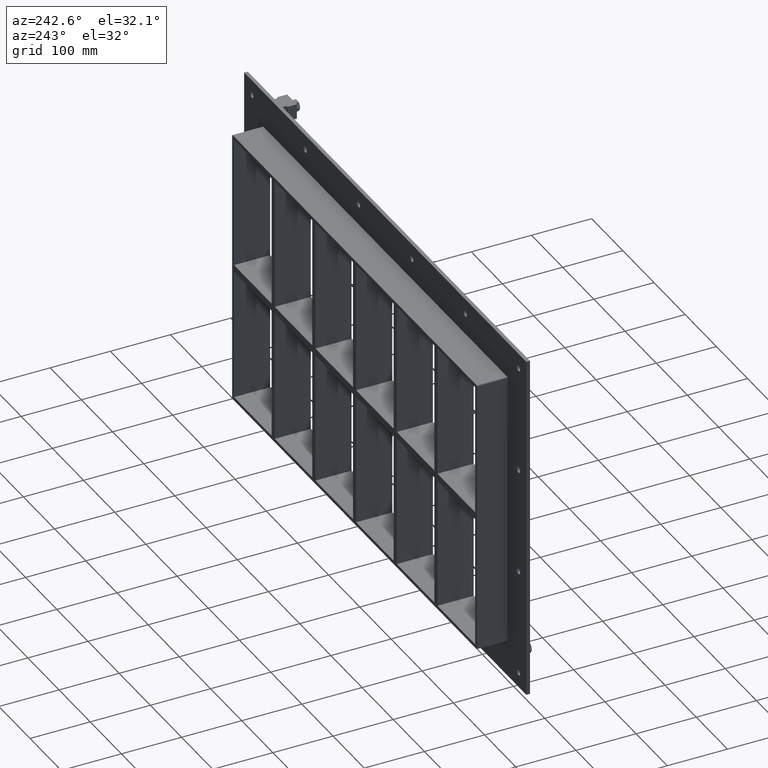
[diagram: clean part render]
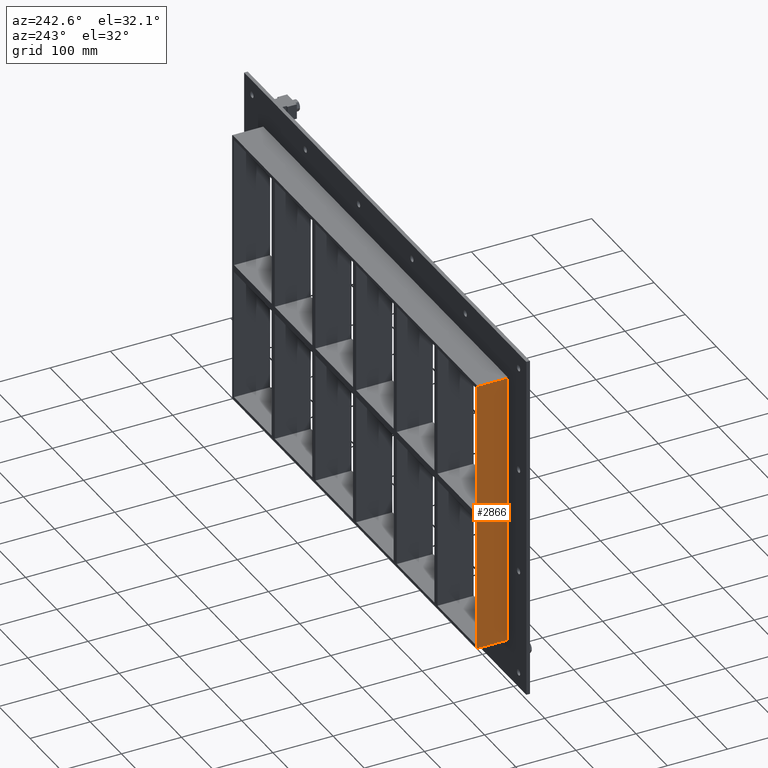
[diagram: same view with one face highlighted and labeled with its STEP entity id]
A machine part, auxiliary view. The second image highlights one B-rep face of the part: STEP entity #2866.
In plain terms, the highlighted planar face has unit normal (-1, 0, 0).
Its self-contained STEP definition (entity closure, byte-faithful):
#1682=CARTESIAN_POINT('',(-392.5,57.0,-228.00000000000006));
#1683=VERTEX_POINT('',#1682);
#1692=CARTESIAN_POINT('',(-392.5,57.0,228.00000000000009));
#1693=VERTEX_POINT('',#1692);
#1694=CARTESIAN_POINT('',(-392.5,57.0,-228.00000000000003));
#1695=DIRECTION('',(0.0,0.0,1.0));
#1696=VECTOR('',#1695,456.00000000000011);
#1697=LINE('',#1694,#1696);
#1698=EDGE_CURVE('',#1683,#1693,#1697,.T.);
#2357=CARTESIAN_POINT('',(-392.5,6.000000000000001,228.00000000000006));
#2358=VERTEX_POINT('',#2357);
#2368=CARTESIAN_POINT('',(-392.5,6.000000000000001,-228.00000000000006));
#2369=VERTEX_POINT('',#2368);
#2370=CARTESIAN_POINT('',(-392.5,6.000000000000001,-228.00000000000003));
#2371=DIRECTION('',(0.0,0.0,1.0));
#2372=VECTOR('',#2371,456.00000000000011);
#2373=LINE('',#2370,#2372);
#2374=EDGE_CURVE('',#2369,#2358,#2373,.T.);
#2799=CARTESIAN_POINT('',(-392.5,6.000000000000001,-228.00000000000006));
#2800=DIRECTION('',(0.0,1.0,0.0));
#2801=VECTOR('',#2800,51.0);
#2802=LINE('',#2799,#2801);
#2803=EDGE_CURVE('',#2369,#1683,#2802,.T.);
#2850=CARTESIAN_POINT('',(-392.5,0.0,-230.00000000000003));
#2851=DIRECTION('',(-1.0,0.0,0.0));
#2852=DIRECTION('',(0.0,0.0,1.0));
#2853=AXIS2_PLACEMENT_3D('',#2850,#2851,#2852);
#2854=PLANE('',#2853);
#2855=ORIENTED_EDGE('',*,*,#2374,.T.);
#2856=CARTESIAN_POINT('',(-392.5,57.0,228.00000000000006));
#2857=DIRECTION('',(0.0,-1.0,0.0));
#2858=VECTOR('',#2857,51.0);
#2859=LINE('',#2856,#2858);
#2860=EDGE_CURVE('',#1693,#2358,#2859,.T.);
#2861=ORIENTED_EDGE('',*,*,#2860,.F.);
#2862=ORIENTED_EDGE('',*,*,#1698,.F.);
#2863=ORIENTED_EDGE('',*,*,#2803,.F.);
#2864=EDGE_LOOP('',(#2855,#2861,#2862,#2863));
#2865=FACE_OUTER_BOUND('',#2864,.T.);
#2866=ADVANCED_FACE('',(#2865),#2854,.T.);